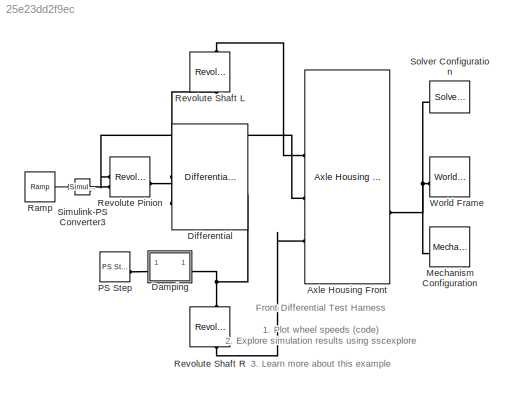
MODEL slx_25e23dd2f9ec
KIND model
CONFIG AbsTol = 1e-3
CONFIG EnableMultiTasking = on
CONFIG FixedStep = auto
CONFIG MaxStep = 0.01
CONFIG MinStep = auto
CONFIG RelTol = 1e-3
CONFIG SampleTimeConstraint = Unconstrained
CONFIG SolverName = VariableStepAuto
CONFIG StartTime = 0.0
CONFIG StopTime = 10
BLOCK [Reference] Axle Housing Front  REF=sm_wheel_loader_lib/Wheel Loader Vehicle/Driveline/Axle Housing  (lib defined in slx_2f13f0afc9e9, slx_78fdec152d5c)
Front
  NameLocation = top
  SourceBlock = sm_wheel_loader_lib/Wheel Loader Vehicle/Driveline/Axle Housing\nFront
  Tag = 26328293-4415-CB41-A9FB-B9AA4EE664BB
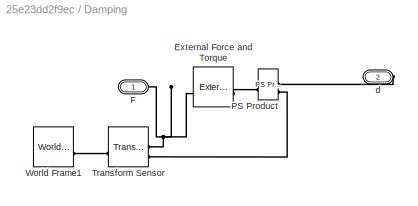
BLOCK [SubSystem] Damping
BLOCK [Reference] Damping/External Force and Torque  REF=sm_lib/Forces and
Torques/External Force
and Torque
  SourceBlock = sm_lib/Forces and\nTorques/External Force\nand Torque
  SourceType = External Force\nand Torque
BLOCK [PMIOPort] Damping/F
  Side = Left
BLOCK [Reference] Damping/PS Product  REF=fl_lib/Physical Signals/Functions/PS Product
  SourceBlock = fl_lib/Physical Signals/Functions/PS Product
  SourceType = PS Product
BLOCK [Reference] Damping/Transform Sensor  REF=sm_lib/Frames and
Transforms/Transform
Sensor
  SourceBlock = sm_lib/Frames and\nTransforms/Transform\nSensor
  SourceType = Transform\nSensor
BLOCK [Reference] Damping/World Frame1  REF=sm_lib/Frames and
Transforms/World Frame
  SourceBlock = sm_lib/Frames and\nTransforms/World Frame
  SourceType = World Frame
BLOCK [PMIOPort] Damping/d
  Port = 2
  Side = Right
BLOCK [Reference] Differential  REF=sm_wheel_loader_lib/Wheel Loader Vehicle/Driveline/Driveline/Driveline 3D/Differential F  (lib defined in slx_2f13f0afc9e9, slx_78fdec152d5c)
  SourceBlock = sm_wheel_loader_lib/Wheel Loader Vehicle/Driveline/Driveline/Driveline 3D/Differential F
BLOCK [Reference] Mechanism Configuration  REF=sm_lib/Utilities/Mechanism
Configuration
  SourceBlock = sm_lib/Utilities/Mechanism\nConfiguration
  SourceType = Mechanism\nConfiguration
BLOCK [Reference] PS Step  REF=fl_lib/Physical Signals/Sources/PS Step
  SourceBlock = fl_lib/Physical Signals/Sources/PS Step
  SourceType = PS Step
BLOCK [Reference] Ramp  REF=simulink/Sources/Ramp
  NameLocation = top
  SourceBlock = simulink/Sources/Ramp
  SourceType = Ramp
BLOCK [Reference] Revolute Pinion  REF=sm_lib/Joints/Revolute Joint
  SourceBlock = sm_lib/Joints/Revolute Joint
  SourceType = Revolute Joint
BLOCK [Reference] Revolute Shaft L  REF=sm_lib/Joints/Revolute Joint
  NameLocation = left
  SourceBlock = sm_lib/Joints/Revolute Joint
  SourceType = Revolute Joint
BLOCK [Reference] Revolute Shaft R  REF=sm_lib/Joints/Revolute Joint
  NameLocation = left
  SourceBlock = sm_lib/Joints/Revolute Joint
  SourceType = Revolute Joint
BLOCK [Reference] Simulink-PS Converter3  REF=nesl_utility/Simulink-PS
Converter
  NameLocation = top
  SourceBlock = nesl_utility/Simulink-PS\nConverter
  SourceType = Simulink-PS\nConverter
BLOCK [Reference] Solver Configuration  REF=nesl_utility/Solver
Configuration
  SourceBlock = nesl_utility/Solver\nConfiguration
  SourceType = Solver\nConfiguration
BLOCK [Reference] World Frame  REF=sm_lib/Frames and
Transforms/World Frame
  SourceBlock = sm_lib/Frames and\nTransforms/World Frame
  SourceType = World Frame
ANNOTATION (root): 1. Plot wheel speeds ( code ) 2. Explore simulation results using sscexplore 3. Learn more about this example
ANNOTATION (root): Front Differential Test Harness
LINE Ramp:1 -> Simulink-PS Converter3:1
PLINE Axle Housing Front:LConn1 -- Revolute Shaft L:LConn1
PLINE Axle Housing Front:LConn2 -- Revolute Pinion:LConn1
PLINE Axle Housing Front:LConn3 -- Revolute Shaft R:RConn1
PNET net1: Axle Housing Front:RConn1 -- Mechanism Configuration:RConn1 -- Solver Configuration:RConn1 -- World Frame:RConn1
PLINE Damping/External Force and Torque:LConn1 -- Damping/PS Product:RConn1
PNET net2: Damping/External Force and Torque:RConn1 -- Damping/F:RConn1 -- Damping/Transform Sensor:RConn1
PLINE Damping/PS Product:LConn1 -- Damping/d:RConn1
PLINE Damping/PS Product:LConn2 -- Damping/Transform Sensor:RConn2
PLINE Damping/Transform Sensor:LConn1 -- Damping/World Frame1:RConn1
PNET net3: Damping:LConn1 -- Differential:RConn1 -- Revolute Shaft R:LConn1
PLINE Damping:RConn1 -- PS Step:RConn1
PLINE Differential:LConn1 -- Revolute Pinion:RConn1
PLINE Differential:LConn2 -- Revolute Shaft L:RConn1
PLINE Revolute Pinion:LConn2 -- Simulink-PS Converter3:RConn1
note: PNET lines group multi-terminal physical nets as a canonical sorted terminal list (undirected conserving connections); 2-terminal nets keep the pairwise PLINE form
